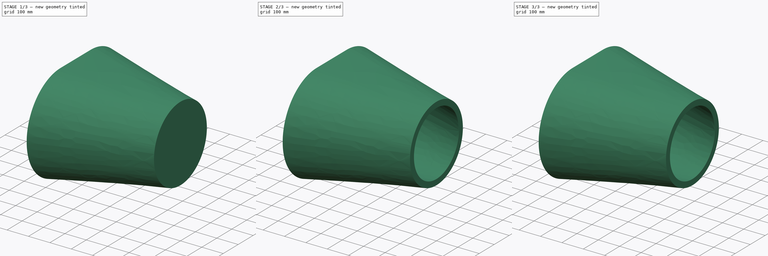
[diagram: build sequence overview — one tinted view per stage of 3, left to right]
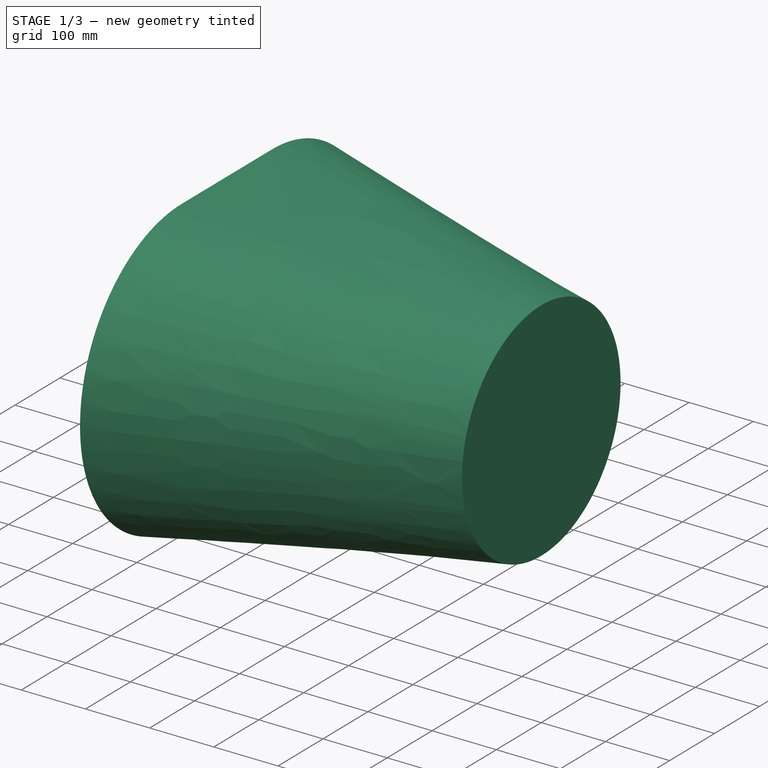
[diagram: stage 1 of 3 — iso view after this stage's code; geometry added in this stage tinted green]
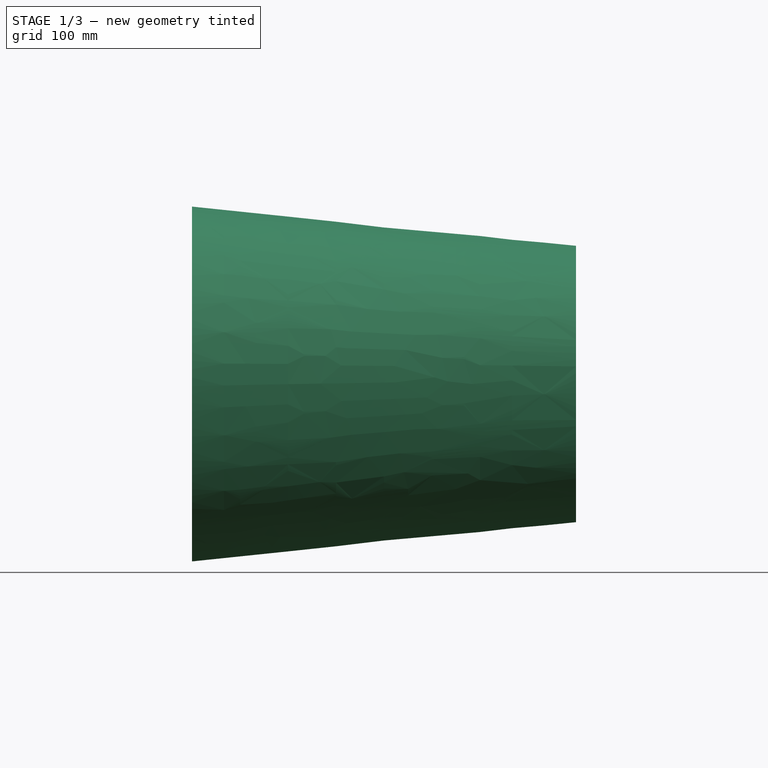
[diagram: stage 1 of 3 — front view after this stage's code; geometry added in this stage tinted green]
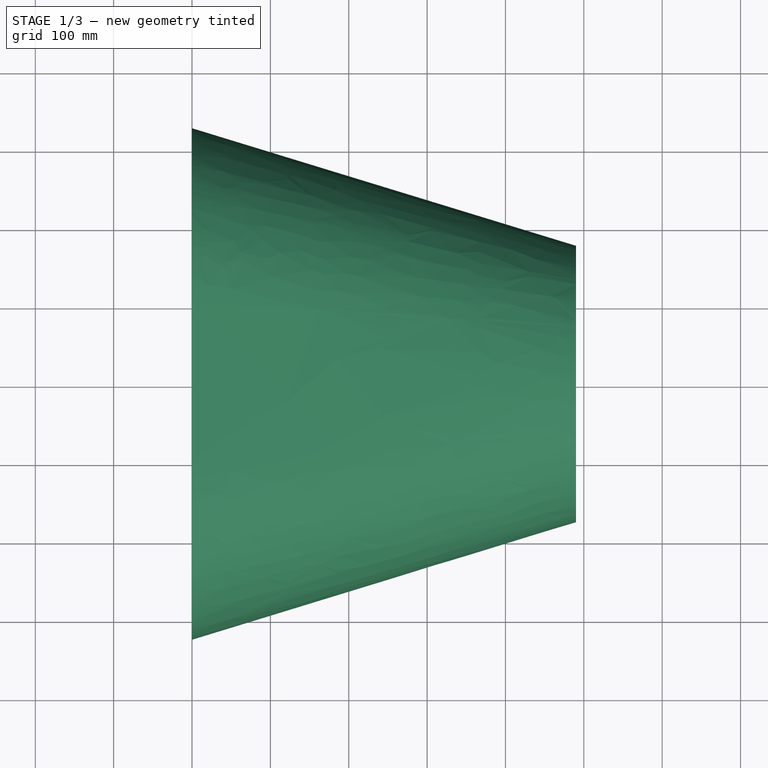
[diagram: stage 1 of 3 — top view after this stage's code; geometry added in this stage tinted green]
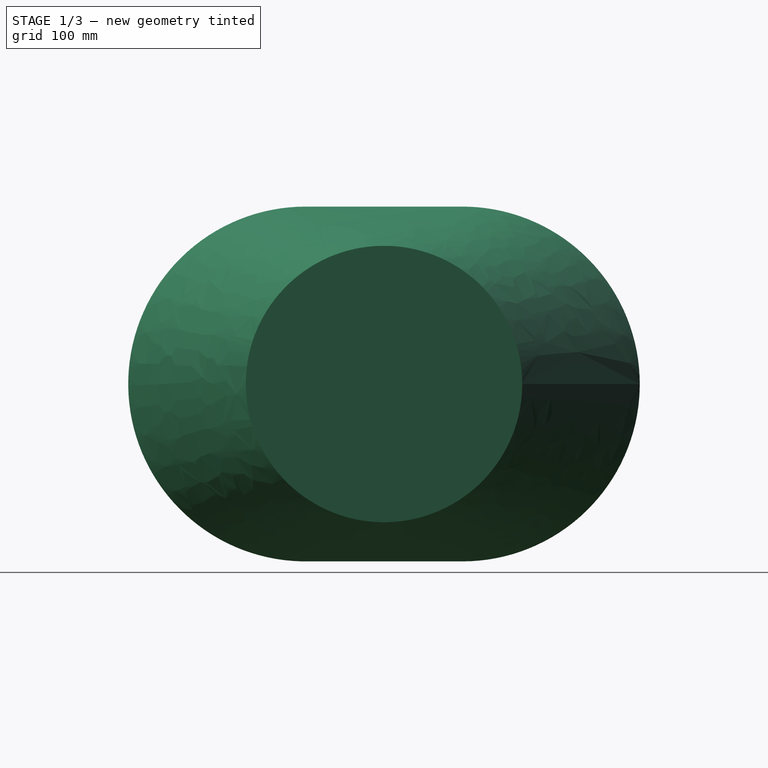
[diagram: stage 1 of 3 — right view after this stage's code; geometry added in this stage tinted green]
FCSTD DOCUMENT  (FreeCAD 1.0R38641 +468 (Git))
Label: Duct_linear_circular_oval_complete_R05
License: All rights reserved
LicenseURL: https://en.wikipedia.org/wiki/All_rights_reserved
objects: Sketcher::SketchObject×8, App::DocumentObjectGroup×5, TechDraw::DrawViewPart×4, Part::Sweep×3, App::MaterialObjectPython×2, Part::Cut×2, Part::Extrusion×2, Part::Part2DObjectPython×1, Spreadsheet::Sheet×1, TechDraw::DrawViewSpreadsheet×1, TechDraw::DrawSVGTemplate×1, App::TextDocument×1, TechDraw::DrawViewSection×1, TechDraw::DrawPage×1, App::VarSet×1, App::DocumentObjectGroupPython×1
note: 24 computed .brp shape members not serialized (recipe doc carries the construction recipe); baked Part::Feature solids carry a one-line shape summary decoded from their .brp

FEATURE [Sketcher::SketchObject] Sketch034  label="Opening_01_external_oval_"
  ArcFitTolerance = 0
  AttachmentOffset = pos=(0,0,-245) rot=(0,0,1;0rad)
  AttachmentSupport = -> [Line]
  FullyConstrained = true
  MakeInternals = false
  MapMode = 45
  Placement = pos=(0,0,0) rot=(0.57735,0.57735,0.57735;2.0944rad)
  expr: .AttachmentOffset.Base.z = -VarSet.Duct_Axis.Length / 2
  expr: .Constraints.Diameter = VarSet.Duct_Opening1_diameter + 2 * VarSet.Duct_Sheet_thickness
  expr: .Constraints.Distance_betweens_arcs = VarSet.Duct_Opening1_distance_between_arcs
  expr: .Constraints.Horizontal_position = VarSet.Duct_Opening1_distance_between_arcs / 2 + VarSet.Duct_Opening1_horizontal_position
  expr: .Constraints.Vertical_position = VarSet.Duct_Opening1_vertical_position
  expr: AttachmentSupport = VarSet.Duct_Axis
  expr: MapReversed = VarSet.Duct_Flip_axis
  sketch-geometry (4):
    g0: ArcOfCircle CenterX=-100 CenterY=-1.18e-14 CenterZ=0 NormalX=0 NormalY=0 NormalZ=1 AngleXU=0 Radius=201 StartAngle=1.5708 EndAngle=4.71239
    g1: ArcOfCircle CenterX=100 CenterY=0 CenterZ=0 NormalX=0 NormalY=0 NormalZ=1 AngleXU=0 Radius=201 StartAngle=4.71239 EndAngle=7.85398
    g2: LineSegment StartX=-100 StartY=-201 StartZ=0 EndX=100 EndY=-201 EndZ=0
    g3: LineSegment StartX=100 StartY=201 StartZ=0 EndX=-100 EndY=201 EndZ=0
  constraints (10):
    c: Tangent(g0,g2) = -1.5708
    c: Tangent(g2,g1) = -1.5708
    c: Tangent(g1,g3) = -1.5708
    c: Tangent(g3,g0) = -1.5708
    c: Equal(g0,g1)
    c: DistanceX(g0,g1) = 200  'Distance_betweens_arcs'
    c: Diameter(g1) = 402  'Diameter'
    c: Horizontal(g2)
    c: DistanceX(g-1,g1) = 100  'Horizontal_position'
    c: DistanceY(g-1,g1) = 0  'Vertical_position'
FEATURE [Sketcher::SketchObject] Sketch035  label="Opening_02_external_circular_"
  ArcFitTolerance = 0
  AttachmentOffset = pos=(0,0,245) rot=(0,0,1;0rad)
  AttachmentSupport = -> [Line]
  FullyConstrained = true
  MakeInternals = false
  MapMode = 45
  Placement = pos=(490,0,0) rot=(0.57735,0.57735,0.57735;2.0944rad)
  expr: .AttachmentOffset.Base.z = VarSet.Duct_Axis.Length / 2
  expr: .Constraints.Diameter = VarSet.Duct_Opening2_diameter + 2 * VarSet.Duct_Sheet_thickness
  expr: .Constraints.Horizontal_position = VarSet.Duct_Opening2_horizontal_position
  expr: .Constraints.Vertical_position = VarSet.Duct_Opening2_vertical_position
  expr: AttachmentSupport = VarSet.Duct_Axis
  expr: MapReversed = VarSet.Duct_Flip_axis
  sketch-geometry (1):
    g0: Circle CenterX=0 CenterY=0 CenterZ=0 NormalX=0 NormalY=0 NormalZ=1 AngleXU=0 Radius=151
  constraints (3):
    c: Diameter(g0) = 302  'Diameter'
    c: DistanceX(g-1,g0) = 0  'Horizontal_position'
    c: DistanceY(g-1,g0) = 0  'Vertical_position'
FEATURE [Part::Sweep] Sweep002  label="Sweep001_external_volume"
  Frenet = true
  Sections = -> [Sketch034,Sketch035]
  Solid = true
  Spine = -> Line
  Transition = 1
  expr: Spine = VarSet.Duct_Axis
FEATURE [Sketcher::SketchObject] Sketch036  label="Opening_01_flange_oval_"
  ArcFitTolerance = 0
  AttachmentOffset = pos=(0,0,-245) rot=(0,0,1;0rad)
  AttachmentSupport = -> [Line]
  FullyConstrained = true
  MakeInternals = false
  MapMode = 45
  Placement = pos=(0,0,0) rot=(0.57735,0.57735,0.57735;2.0944rad)
  expr: .AttachmentOffset.Base.z = -VarSet.Duct_Axis.Length / 2
  expr: .Constraints.Diameter_external = VarSet.Duct_Opening1_diameter + 2 * VarSet.Flange_Height
  expr: .Constraints.Diameter_internal = VarSet.Duct_Opening1_diameter
  expr: .Constraints.Distance_betweens_arcs = VarSet.Duct_Opening1_distance_between_arcs
  expr: .Constraints.Horizontal_position = VarSet.Duct_Opening1_distance_between_arcs / 2 + VarSet.Duct_Opening1_horizontal_position
  expr: .Constraints.Vertical_position = VarSet.Duct_Opening1_vertical_position
  expr: AttachmentSupport = VarSet.Duct_Axis
  expr: MapReversed = VarSet.Duct_Flip_axis
  sketch-geometry (8):
    g0: ArcOfCircle CenterX=-100 CenterY=-1.37e-14 CenterZ=0 NormalX=0 NormalY=0 NormalZ=1 AngleXU=0 Radius=220 StartAngle=1.5708 EndAngle=4.71239
    g1: ArcOfCircle CenterX=100 CenterY=0 CenterZ=0 NormalX=0 NormalY=0 NormalZ=1 AngleXU=0 Radius=220 StartAngle=4.71239 EndAngle=7.85398
    g2: LineSegment StartX=-100 StartY=-220 StartZ=0 EndX=100 EndY=-220 EndZ=0
    g3: LineSegment StartX=100 StartY=220 StartZ=0 EndX=-100 EndY=220 EndZ=0
    g4: ArcOfCircle CenterX=-100 CenterY=-1.37e-14 CenterZ=0 NormalX=0 NormalY=0 NormalZ=1 AngleXU=0 Radius=200 StartAngle=1.5708 EndAngle=4.71239
    g5: ArcOfCircle CenterX=100 CenterY=0 CenterZ=0 NormalX=0 NormalY=0 NormalZ=1 AngleXU=0 Radius=200 StartAngle=4.71239 EndAngle=7.85398
    g6: LineSegment StartX=-100 StartY=-200 StartZ=0 EndX=100 EndY=-200 EndZ=0
    g7: LineSegment StartX=100 StartY=200 StartZ=0 EndX=-100 EndY=200 EndZ=0
  constraints (18):
    c: Tangent(g0,g2) = -1.5708
    c: Tangent(g2,g1) = -1.5708
    c: Tangent(g1,g3) = -1.5708
    c: Tangent(g3,g0) = -1.5708
    c: Equal(g0,g1)
    c: DistanceX(g0,g1) = 200  'Distance_betweens_arcs'
    c: Diameter(g1) = 440  'Diameter_external'
    c: Tangent(g4,g6) = -1.5708
    c: Tangent(g6,g5) = -1.5708
    c: Tangent(g5,g7) = -1.5708
    c: Tangent(g7,g4) = -1.5708
    c: Equal(g4,g5)
    c: Coincident(g4,g0)
    c: Coincident(g5,g1)
    c: Diameter(g5) = 400  'Diameter_internal'
    c: Horizontal(g6)
    c: DistanceX(g-1,g1) = 100  'Horizontal_position'
    c: DistanceY(g-1,g1) = 0  'Vertical_position'
FEATURE [Sketcher::SketchObject] Sketch037  label="Opening_02_flane_circular_"
  ArcFitTolerance = 0
  AttachmentOffset = pos=(0,0,245) rot=(0,0,1;0rad)
  AttachmentSupport = -> [Line]
  FullyConstrained = true
  MakeInternals = false
  MapMode = 45
  Placement = pos=(490,0,0) rot=(0.57735,0.57735,0.57735;2.0944rad)
  expr: .AttachmentOffset.Base.z = VarSet.Duct_Axis.Length / 2
  expr: .Constraints.Diameter_external = VarSet.Duct_Opening2_diameter + 2 * VarSet.Flange_Height
  expr: .Constraints.Diameter_internal = VarSet.Duct_Opening2_diameter
  expr: .Constraints.Horizontal_position = VarSet.Duct_Opening2_horizontal_position
  expr: .Constraints.Vertical_position = VarSet.Duct_Opening2_vertical_position
  expr: AttachmentSupport = VarSet.Duct_Axis
  expr: MapReversed = VarSet.Duct_Flip_axis
  sketch-geometry (2):
    g0: Circle CenterX=0 CenterY=0 CenterZ=0 NormalX=0 NormalY=0 NormalZ=1 AngleXU=0 Radius=170
    g1: Circle CenterX=0 CenterY=0 CenterZ=0 NormalX=0 NormalY=0 NormalZ=1 AngleXU=0 Radius=150
  constraints (5):
    c: Diameter(g0) = 340  'Diameter_external'
    c: DistanceX(g-1,g0) = 0  'Horizontal_position'
    c: DistanceY(g-1,g0) = 0  'Vertical_position'
    c: Coincident(g1,g0)
    c: Diameter(g1) = 300  'Diameter_internal'
FEATURE [Spreadsheet::Sheet] Spreadsheet003  label="Output_linear_circular_oval_duct"
  cells = A1='Description:; A2==<<Oval circular duct for air conditioning with %s>> % VarSet.Duct_Axis.Length + << of lenght>> + <<, composed of %s>> % VarSet.Duct_Sheet_thickness + << thick of %s>> % VarSet.Materials_Sheet_metal.Label + << sheets (opening 1 of %s>> % (VarSet.Duct_Opening1_diameter + VarSet.Duct_Opening1_distance_between_arcs) + << x %s>> % VarSet.Duct_Opening1_diameter + << in width and height, and opening 2 of %s>> % VarSet.Duct_Opening2_diameter + << in diameter)>> + VarSet.Insulation_Insulation * (<< with an external insulation layer of %s>> % VarSet.Insulation_Thickness + << thick %s>> % VarSet.Materials_Insulation.Label + << blanket>>) + <<.>>; A5='Components; B5='Dimensions; C5='Area; D5='Material; A6='1. Duct oval circular; C6==Cut.Base_Area; D6==VarSet.Materials_Sheet_metal.Label; A7='1.1. Duct length:; B7==VarSet.Duct_Axis.Length; A8='1.2. Height 1:; B8==VarSet.Duct_Opening1_diameter; A9='1.3. Width 1; B9==VarSet.Duct_Opening1_diameter + VarSet.Duct_Opening1_distance_between_arcs; A10='1.3. Diameter 2:; B10==VarSet.Duct_Opening2_diameter; A11='1.4. Sheet thickness:; B11==VarSet.Duct_Sheet_thickness; A12='2. Flanges; C12==(VarSet.Flange_Flange1 + VarSet.Flange_Flange2 - VarSet.Flange_Flange1 * VarSet.Flange_Flange2) * str(round(Extrude.Base_Area * VarSet.Flange_Flange1 + Extrude001.Base_Area * VarSet.Flange_Flange2)); D12==(VarSet.Flange_Flange1 + VarSet.Flange_Flange2 - VarSet.Flange_Flange1 * VarSet.Flange_Flange2) * VarSet.Materials_Sheet_metal.Label; A13='2.1. Flanges height:; B13==(VarSet.Flange_Flange1 + VarSet.Flange_Flange2 - VarSet.Flange_Flange1 * VarSet.Flange_Flange2) * str(VarSet.Flange_Height); A14='2.2. Flanges thickness:; B14==(VarSet.Flange_Flange1 + VarSet.Flange_Flange2 - VarSet.Flange_Flange1 * VarSet.Flange_Flange2) * str(VarSet.Flange_Thickness); A15='3. Insulation; C15==VarSet.Insulation_Insulation * str(round(Cut001.Base_Area)) + <<--->> * (1 - VarSet.Insulation_Insulation); D15==VarSet.Materials_Insulation.Label * VarSet.Insulation_Insulation + <<--->> * (1 - VarSet.Insulation_Insulation); A16='3.1. Insulation thickness:; B16==str(VarSet.Insulation_Thickness) * VarSet.Insulation_Insulation + <<--->> * (1 - VarSet.Insulation_Insulation)
FEATURE [App::DocumentObjectGroup] Group001  label="Spreadsheet_output_"
  Group = -> [Spreadsheet003]
FEATURE [TechDraw::DrawViewSpreadsheet] Sheet  label="Spreadsheet"
  CellEnd = D16
  CellStart = A5
  Font = Arial
  LineWidth = 0.35
  LockPosition = false
  Rotation = 0
  ScaleType = 2
  Source = -> Spreadsheet003
  Symbol = <blob: 11197 chars omitted>
  TextSize = 14
  X = 319.693
  Y = 120.956
  expr: Scale = 1
FEATURE [TechDraw::DrawSVGTemplate] Template
  EditableTexts = AUTHOR_NAME=AUTHOR NAME; DN=DN; DRAWING_TITLE=DRAWING TITLE; FC-DATE=DD/MM/YYYY; FC-REV=REV A; FC-SC=1/20; FC-SH=X / Y; FC-SI=A3; FreeCAD_DRAWING=Circular oval duct; PN=PN
  Height = 297
  Orientation = 1
  Template = <userpath>/.cache/FreeCAD/Cache/FreeCAD_Doc_3643bbbe-9e9e-4a03-a47e-29c3828a9b33_5532ac_6794/A3_Landscape_ISO7200TD.svg
  Width = 420
FEATURE [Sketcher::SketchObject] Sketch038  label="Opening_01_external_oval_insulation"
  ArcFitTolerance = 0
  AttachmentOffset = pos=(0,0,-245) rot=(0,0,1;0rad)
  AttachmentSupport = -> [Line]
  FullyConstrained = true
  MakeInternals = false
  MapMode = 45
  Placement = pos=(0,0,0) rot=(0.57735,0.57735,0.57735;2.0944rad)
  expr: .AttachmentOffset.Base.z = -VarSet.Duct_Axis.Length / 2
  expr: .Constraints.Diameter = VarSet.Duct_Opening1_diameter + 2 * VarSet.Duct_Sheet_thickness + 2 * VarSet.Insulation_Thickness
  expr: .Constraints.Distance_betweens_arcs = VarSet.Duct_Opening1_distance_between_arcs
  expr: .Constraints.Horizontal_position = VarSet.Duct_Opening1_distance_between_arcs / 2 + VarSet.Duct_Opening1_horizontal_position
  expr: .Constraints.Vertical_position = VarSet.Duct_Opening1_vertical_position
  expr: AttachmentSupport = VarSet.Duct_Axis
  expr: MapReversed = VarSet.Duct_Flip_axis
  sketch-geometry (4):
    g0: ArcOfCircle CenterX=-100 CenterY=6.5e-15 CenterZ=0 NormalX=0 NormalY=0 NormalZ=1 AngleXU=0 Radius=226.4 StartAngle=1.5708 EndAngle=4.71239
    g1: ArcOfCircle CenterX=100 CenterY=0 CenterZ=0 NormalX=0 NormalY=0 NormalZ=1 AngleXU=0 Radius=226.4 StartAngle=4.71239 EndAngle=7.85398
    g2: LineSegment StartX=-100 StartY=-226.4 StartZ=0 EndX=100 EndY=-226.4 EndZ=0
    g3: LineSegment StartX=100 StartY=226.4 StartZ=0 EndX=-100 EndY=226.4 EndZ=0
  constraints (10):
    c: Tangent(g0,g2) = -1.5708
    c: Tangent(g2,g1) = -1.5708
    c: Tangent(g1,g3) = -1.5708
    c: Tangent(g3,g0) = -1.5708
    c: Equal(g0,g1)
    c: DistanceX(g0,g1) = 200  'Distance_betweens_arcs'
    c: Diameter(g1) = 452.8  'Diameter'
    c: Horizontal(g2)
    c: DistanceX(g-1,g1) = 100  'Horizontal_position'
    c: DistanceY(g-1,g1) = 0  'Vertical_position'
FEATURE [Sketcher::SketchObject] Sketch039  label="Opening_02_external_circular_insulation"
  ArcFitTolerance = 0
  AttachmentOffset = pos=(0,0,245) rot=(0,0,1;0rad)
  AttachmentSupport = -> [Line]
  FullyConstrained = true
  MakeInternals = false
  MapMode = 45
  Placement = pos=(490,0,0) rot=(0.57735,0.57735,0.57735;2.0944rad)
  expr: .AttachmentOffset.Base.z = VarSet.Duct_Axis.Length / 2
  expr: .Constraints.Diameter = VarSet.Duct_Opening2_diameter + 2 * VarSet.Duct_Sheet_thickness + 2 * VarSet.Insulation_Thickness
  expr: .Constraints.Horizontal_position = VarSet.Duct_Opening2_horizontal_position
  expr: .Constraints.Vertical_position = VarSet.Duct_Opening2_vertical_position
  expr: AttachmentSupport = VarSet.Duct_Axis
  expr: MapReversed = VarSet.Duct_Flip_axis
  sketch-geometry (1):
    g0: Circle CenterX=0 CenterY=0 CenterZ=0 NormalX=0 NormalY=0 NormalZ=1 AngleXU=0 Radius=176.4
  constraints (3):
    c: Diameter(g0) = 352.8  'Diameter'
    c: DistanceX(g-1,g0) = 0  'Horizontal_position'
    c: DistanceY(g-1,g0) = 0  'Vertical_position'
FEATURE [Part::Sweep] Sweep003  label="Sweep001_external_insulation"
  Frenet = true
  Sections = -> [Sketch038,Sketch039]
  Solid = true
  Spine = -> Line
  Transition = 1
  expr: Spine = VarSet.Duct_Axis
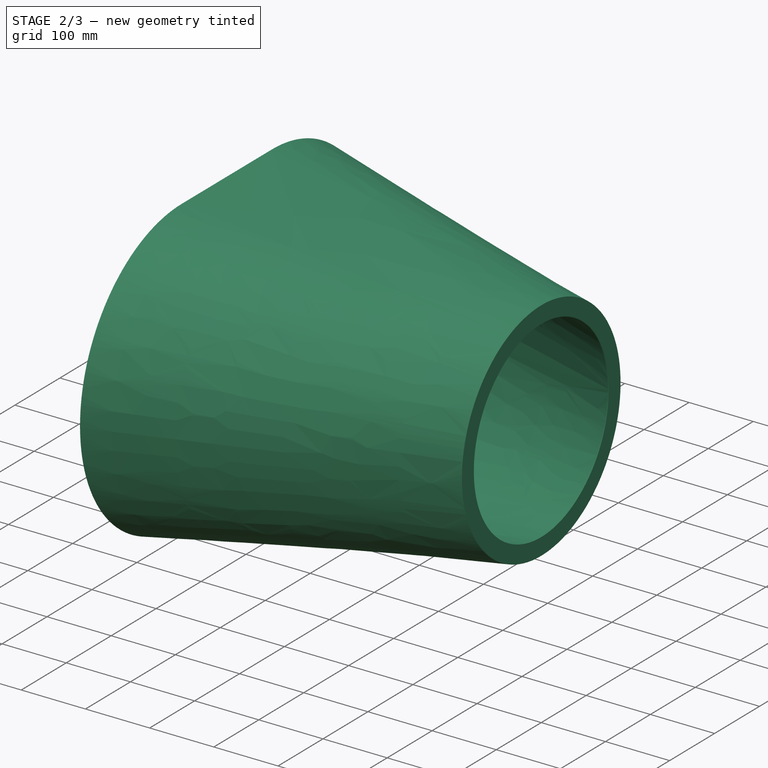
[diagram: stage 2 of 3 — iso view after this stage's code; geometry added in this stage tinted green]
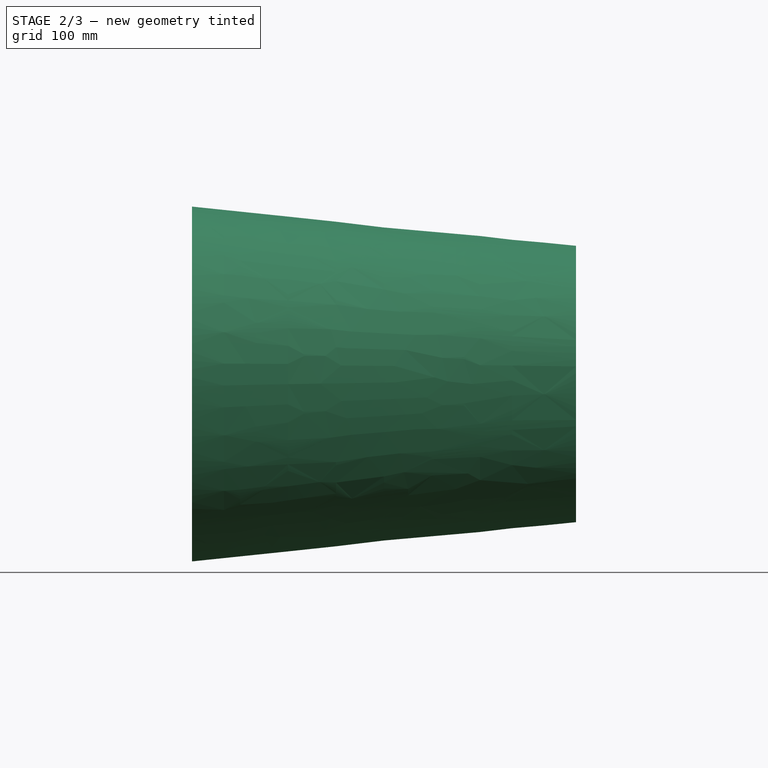
[diagram: stage 2 of 3 — front view after this stage's code; geometry added in this stage tinted green]
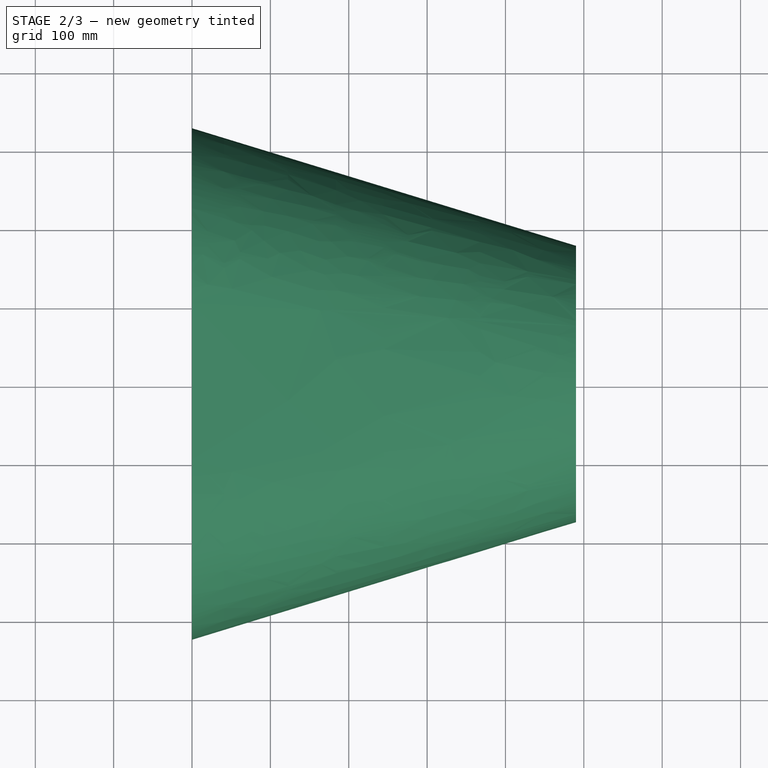
[diagram: stage 2 of 3 — top view after this stage's code; geometry added in this stage tinted green]
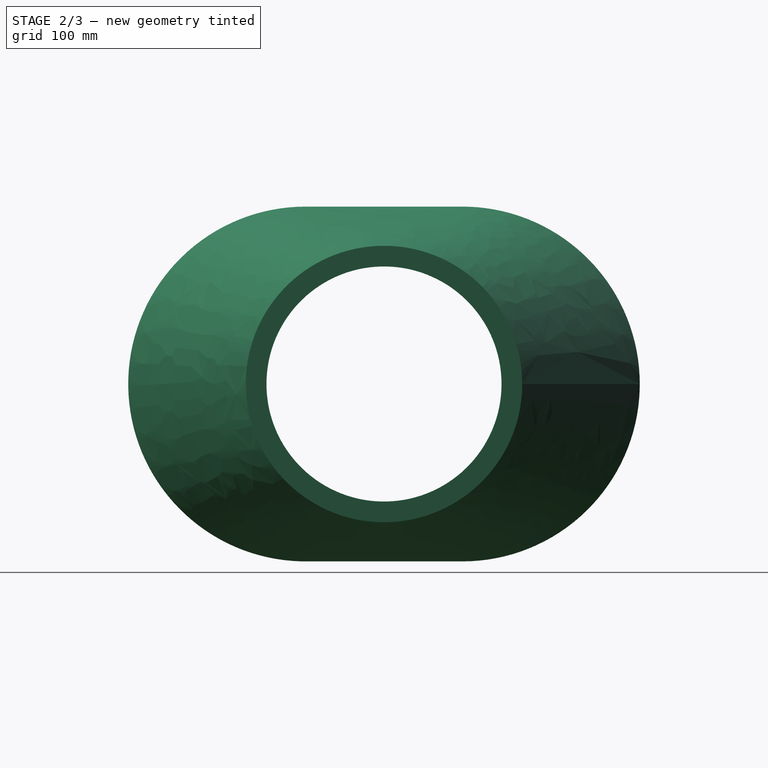
[diagram: stage 2 of 3 — right view after this stage's code; geometry added in this stage tinted green]
FEATURE [Part::Extrusion] Extrude  label="Flange_01"
  Base = -> Sketch036
  Base_Area = 34389.4
  Dir = (1,0,0)
  DirMode = 2
  FaceMakerClass = Part::FaceMakerBullseye
  FaceMakerMode = 3
  LengthFwd = 1
  LengthRev = 0
  Material = -> Material049
  Solid = true
  Symmetric = false
  expr: Base_Area = .Shape.Face9.Area
  expr: LengthFwd = VarSet.Flange_Thickness
  expr: Material = VarSet.Materials_Sheet_metal
  expr: Visibility = VarSet.Flange_Flange1 * (1 - VarSet.Duct_Show_volume_only)
FEATURE [Part::Extrusion] Extrude001  label="Flange_02"
  Base = -> Sketch037
  Base_Area = 20106.2
  Dir = (1,0,0)
  DirMode = 2
  FaceMakerClass = Part::FaceMakerBullseye
  FaceMakerMode = 3
  LengthFwd = 1
  LengthRev = 0
  Material = -> Material049
  Reversed = true
  Solid = true
  Symmetric = false
  expr: Base_Area = .Shape.Face3.Area
  expr: LengthFwd = VarSet.Flange_Thickness
  expr: Material = VarSet.Materials_Sheet_metal
  expr: Visibility = VarSet.Flange_Flange2 * (1 - VarSet.Duct_Show_volume_only)
FEATURE [TechDraw::DrawViewPart] View  label="Isometric"
  CoarseView = false
  Direction = (0.57735,-0.57735,0.57735)
  Focus = 100
  HardHidden = false
  IsoCount = 0
  IsoHidden = false
  IsoVisible = false
  LockPosition = false
  Perspective = false
  Rotation = 0
  Scale = 0.05
  ScaleType = 2
  ScrubCount = 0
  SeamHidden = false
  SeamVisible = true
  SmoothHidden = false
  SmoothVisible = true
  Source = -> [Cut,Extrude,Extrude001]
  X = 330.052
  XDirection = (0.707107,0.707107,0)
  Y = 235.47
FEATURE [TechDraw::DrawViewPart] View001  label="View 01"
  CoarseView = false
  Direction = (1,0,0)
  Focus = 100
  HardHidden = false
  IsoCount = 0
  IsoHidden = false
  IsoVisible = false
  LockPosition = false
  Perspective = false
  Rotation = 0
  Scale = 0.05
  ScaleType = 2
  ScrubCount = 0
  SeamHidden = false
  SeamVisible = true
  SmoothHidden = false
  SmoothVisible = true
  Source = -> [Cut,Extrude,Extrude001]
  X = 75.3951
  XDirection = (0,1,0)
  Y = 232.93
FEATURE [TechDraw::DrawViewPart] View002  label="View 02"
  CoarseView = false
  Direction = (-1,0,0)
  Focus = 100
  HardHidden = false
  IsoCount = 0
  IsoHidden = false
  IsoVisible = false
  LockPosition = false
  Perspective = false
  Rotation = 0
  Scale = 0.05
  ScaleType = 2
  ScrubCount = 0
  SeamHidden = false
  SeamVisible = true
  SmoothHidden = false
  SmoothVisible = true
  Source = -> [Cut,Extrude,Extrude001]
  X = 68.1134
  XDirection = (0,-1,0)
  Y = 106.869
FEATURE [TechDraw::DrawViewPart] View003  label="View 03"
  CoarseView = false
  Direction = (0,-1,0)
  Focus = 100
  HardHidden = false
  IsoCount = 0
  IsoHidden = false
  IsoVisible = false
  LockPosition = false
  Perspective = false
  Rotation = 0
  Scale = 0.05
  ScaleType = 2
  ScrubCount = 0
  SeamHidden = false
  SeamVisible = true
  SmoothHidden = false
  SmoothVisible = true
  Source = -> [Cut,Extrude,Extrude001]
  X = 168.339
  XDirection = (1,0,0)
  Y = 103.619
FEATURE [TechDraw::DrawViewSection] SectionView  label="Section 01"
  BaseView = -> View003
  CoarseView = false
  CutSurfaceDisplay = 2
  Direction = (1e-16,0,1)
  FileGeomPattern = <path>
  FileHatchPattern = <path>
  Focus = 100
  FuseBeforeCut = false
  HardHidden = false
  HatchOffset = (0,0,0)
  HatchRotation = 0
  HatchScale = 1
  IsoCount = 0
  IsoHidden = false
  IsoVisible = false
  LockPosition = false
  NameGeomPattern = Diamante
  Perspective = false
  Rotation = 0
  Scale = 0.05
  ScaleType = 2
  ScrubCount = 0
  SeamHidden = false
  SeamVisible = true
  SectionDirection = 4
  SectionLineStretch = 1
  SectionNormal = (1e-16,0,1)
  SectionOrigin = (245,0,0)
  SmoothHidden = false
  SmoothVisible = true
  Source = -> [Cut,Extrude,Extrude001]
  TrimAfterCut = false
  UsePreviousCut = false
  X = 168.727
  XDirection = (1,0,-1e-16)
  Y = 232.767
FEATURE [TechDraw::DrawPage] Page  label="Sheet_01"
  KeepUpdated = true
  NextBalloonIndex = 1
  ProjectionType = 0
  Template = -> Template
  Views = -> [Sheet,View,View001,View002,View003,SectionView]
FEATURE [App::DocumentObjectGroup] Group002  label="Drawings_"
  Group = -> [Page]
FEATURE [App::MaterialObjectPython] Material050  label="glass wool with aluminium foill generic"  # material (typed FeaturePython)
  Material = AuthorAndLicense=Uwe Stöhr; CardName=Iron-Generic; Color=(0.8, 0.8, 0.8, 1.0); Density=7874 kg/m^3; DiffuseColor=(0.7372549176216125, 0.7372549176216125, 0.7372549176216125); ElectricalConductivity=10.3 MS/m; Father=Metal; KindOfMaterial=Iron; Name=glass wool with aluminium foill generic; PoissonRatio=0.29; RelativePermeability=5000.0; SectionColor=(0.8, 0.8, 0.8, 1.0); ShearModulus=82.0 GPa; SpecificHeat=460.5 J/kg/K; ThermalConductivity=80.4 W/m/K; ThermalExpansionCoefficient=11.8 µm/m/K; Transparency=0; UltimateTensileStrength=497 MPa; ViewColor=(0.8, 0.8, 0.8, 1.0); YieldStrength=428 MPa; YoungsModulus=211 GPa
  Transparency = 0
FEATURE [App::VarSet] VarSet  label="Duct_linear_circular_oval_properties"
  Duct_Axis = -> Line
  Duct_Duct = true
  Duct_Flip_axis = false
  Duct_Opening1_diameter = 400
  Duct_Opening1_distance_between_arcs = 200
  Duct_Opening1_horizontal_position = 0
  Duct_Opening1_vertical_position = 0
  Duct_Opening2_diameter = 300
  Duct_Opening2_horizontal_position = 0
  Duct_Opening2_vertical_position = 0
  Duct_Sheet_thickness = 1
  Duct_Show_volume_only = false
  Flange_Flange1 = true
  Flange_Flange2 = true
  Flange_Height = 20
  Flange_Thickness = 1
  Insulation_Insulation = true
  Insulation_Thickness = 25.4
  Materials_Insulation = -> Material050
  Materials_Sheet_metal = -> Material049
  expr: Insulation_Thickness = 1 in
FEATURE [Part::Cut] Cut001  label="Insulation"
  Base = -> Sweep003
  Base_Area = 2.76906e+06
  Material = -> Material050
  Tool = -> Sweep002
  expr: Base_Area = .Shape.Face1.Area + .Shape.Face2.Area + .Shape.Face4.Area + .Shape.Face6.Area + .Shape.Face7.Area
  expr: Material = VarSet.Materials_Insulation
  expr: Visibility = VarSet.Insulation_Insulation * (1 - VarSet.Duct_Show_volume_only)
FEATURE [App::DocumentObjectGroup] Group  label="Components"
  Group = -> [Cut,Extrude,Extrude001,Cut001]
FEATURE [App::DocumentObjectGroupPython] MaterialContainer  label="Materials"  # scripted group (container) (typed FeaturePython)
  Group = -> [Material049,Material050]
FEATURE [App::DocumentObjectGroup] Group003  label="Material"
  Group = -> [MaterialContainer]
FEATURE [App::DocumentObjectGroup] Group004  label="Duct_linear_circular_oval_#_"
  Group = -> [VarSet,Group,Group001,Group002,Group003,Text_document]
note: 2 file-system paths scrubbed to <path> (originals preserved in the JSON sidecar)
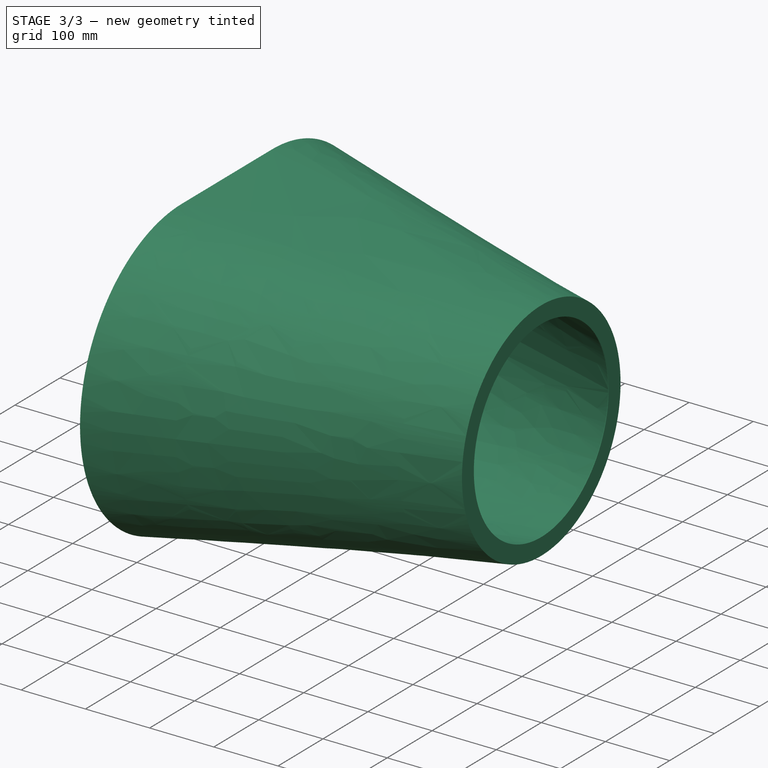
[diagram: stage 3 of 3 — iso view after this stage's code; geometry added in this stage tinted green]
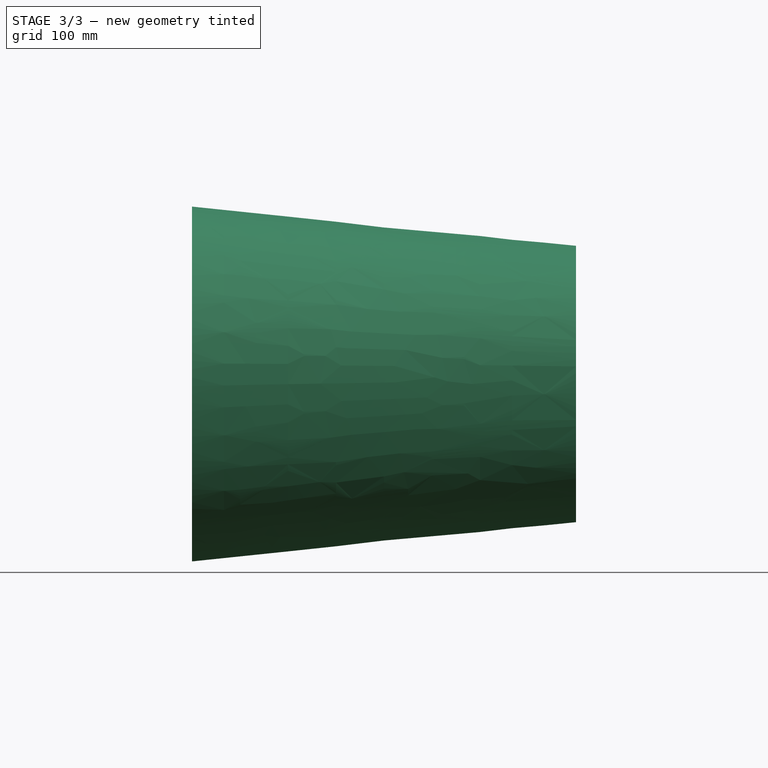
[diagram: stage 3 of 3 — front view after this stage's code; geometry added in this stage tinted green]
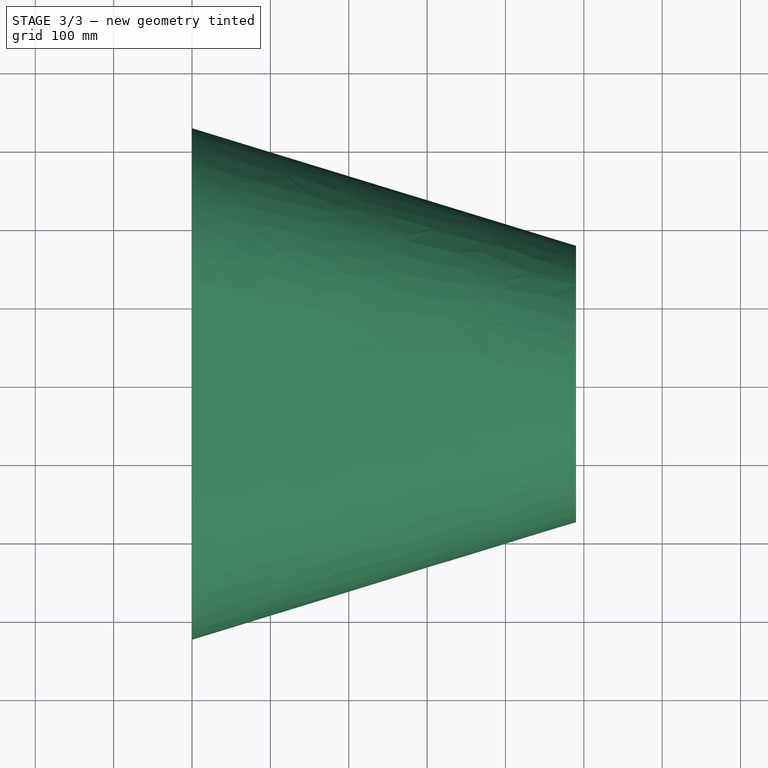
[diagram: stage 3 of 3 — top view after this stage's code; geometry added in this stage tinted green]
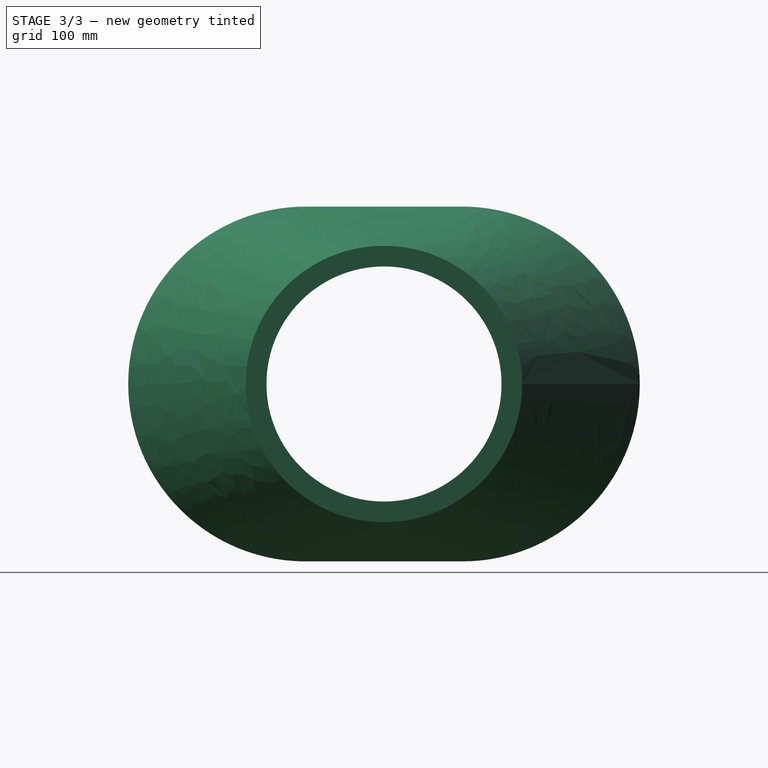
[diagram: stage 3 of 3 — right view after this stage's code; geometry added in this stage tinted green]
FEATURE [Part::Part2DObjectPython] Line  label="Axis"  # Draft 2D object (typed FeaturePython)
  Area = 0
  ChamferSize = 0
  Closed = false
  End = (490,0,0)
  FilletRadius = 0
  Length = 490
  MakeFace = true
  Points = (2) [(0,0,0),(490,0,0)]
  Start = (0,0,0)
  Subdivisions = 0
FEATURE [Sketcher::SketchObject] Sketch032  label="Opening_01_internal_oval_"
  ArcFitTolerance = 0
  AttachmentOffset = pos=(0,0,-245) rot=(0,0,1;0rad)
  AttachmentSupport = -> [Line]
  FullyConstrained = true
  MakeInternals = false
  MapMode = 45
  Placement = pos=(0,0,0) rot=(0.57735,0.57735,0.57735;2.0944rad)
  expr: .AttachmentOffset.Base.z = -VarSet.Duct_Axis.Length / 2
  expr: .Constraints.Diameter = VarSet.Duct_Opening1_diameter
  expr: .Constraints.Distance_betweens_arcs = VarSet.Duct_Opening1_distance_between_arcs
  expr: .Constraints.Horizontal_position = VarSet.Duct_Opening1_distance_between_arcs / 2 + VarSet.Duct_Opening1_horizontal_position
  expr: .Constraints.Vertical_position = VarSet.Duct_Opening1_vertical_position
  expr: AttachmentSupport = VarSet.Duct_Axis
  expr: MapReversed = VarSet.Duct_Flip_axis
  sketch-geometry (4):
    g0: ArcOfCircle CenterX=-100 CenterY=0 CenterZ=0 NormalX=0 NormalY=0 NormalZ=1 AngleXU=0 Radius=200 StartAngle=1.5708 EndAngle=4.71239
    g1: ArcOfCircle CenterX=100 CenterY=-1.7e-14 CenterZ=0 NormalX=0 NormalY=0 NormalZ=1 AngleXU=0 Radius=200 StartAngle=4.71239 EndAngle=7.85398
    g2: LineSegment StartX=-100 StartY=-200 StartZ=0 EndX=100 EndY=-200 EndZ=0
    g3: LineSegment StartX=100 StartY=200 StartZ=0 EndX=-100 EndY=200 EndZ=0
  constraints (10):
    c: Tangent(g0,g2) = -1.5708
    c: Tangent(g2,g1) = -1.5708
    c: Tangent(g1,g3) = -1.5708
    c: Tangent(g3,g0) = -1.5708
    c: Equal(g0,g1)
    c: DistanceX(g0,g1) = 200  'Distance_betweens_arcs'
    c: Diameter(g1) = 400  'Diameter'
    c: Horizontal(g2)
    c: DistanceY(g-1,g0) = 0  'Vertical_position'
    c: DistanceX(g-1,g1) = 100  'Horizontal_position'
FEATURE [Sketcher::SketchObject] Sketch033  label="Opening_02_internal_circular_"
  ArcFitTolerance = 0
  AttachmentOffset = pos=(0,0,245) rot=(0,0,1;0rad)
  AttachmentSupport = -> [Line]
  FullyConstrained = true
  MakeInternals = false
  MapMode = 45
  Placement = pos=(490,0,0) rot=(0.57735,0.57735,0.57735;2.0944rad)
  expr: .AttachmentOffset.Base.z = VarSet.Duct_Axis.Length / 2
  expr: .Constraints.Diameter = VarSet.Duct_Opening2_diameter
  expr: .Constraints.Horizontal_position = VarSet.Duct_Opening2_horizontal_position
  expr: .Constraints.Vertical_position = VarSet.Duct_Opening2_vertical_position
  expr: AttachmentSupport = VarSet.Duct_Axis
  expr: MapReversed = VarSet.Duct_Flip_axis
  sketch-geometry (1):
    g0: Circle CenterX=0 CenterY=0 CenterZ=0 NormalX=0 NormalY=0 NormalZ=1 AngleXU=0 Radius=150
  constraints (3):
    c: Diameter(g0) = 300  'Diameter'
    c: DistanceX(g-1,g0) = 0  'Horizontal_position'
    c: DistanceY(g-1,g0) = 0  'Vertical_position'
FEATURE [Part::Sweep] Sweep001  label="Sweep001_internal_"
  Frenet = true
  Sections = -> [Sketch032,Sketch033]
  Solid = true
  Spine = -> Line
  Transition = 1
  expr: Spine = VarSet.Duct_Axis
  expr: Visibility = VarSet.Duct_Show_volume_only
FEATURE [App::TextDocument] Text_document  label="Instructions"
  Text = 1. Construction of the axes in the final position of the project:\n\n. Use only individual lines and curves to construct the axes in the final position of the duct network project, one for each duct section;\n\n. Do not use polylines or sketches. If there is already a network with these elements, transform them into individual lines and curves;\n\n. Before applying the ducts in the final network, review the spreadsheets and drawings of the duct files according to the project needs. This will reduce the final review work (see item 3). Be careful not to erase the automation (using expressions) contained in the spreadsheet fields.\n\n2. Application of the component in the final project (see the corresponding tutorial videos):\n\n. In the duct properties window, replace the existing axis with the corresponding section of the final project (Axis of Ducts field);\n\n. Adjust the diameters of openings 1 and 2 according to the project;\n\n. If necessary, invert the duct axis so that openings 1 or 2 swap positions (Flip_axis field of Ducts);\n\n3. Review of individual drawings\n\n. After inserting the ducts into the designed network, review the individual drawings contained in the duct files, according to your needs (scale, dimensions, notes, views, etc.).\n\n4. General drawing of the network\n\n. If you prefer, you can create a spreadsheet of the ducts used linked to the individual ones, presenting a summary of the descriptions, areas, materials, dimensions, as well as their sums.\n\n5. Help and comments\n\n. If you encounter any problems and require help or want to make a comment, use the FreeCAD forum for this purpose.
FEATURE [App::MaterialObjectPython] Material049  label="galvanized steel generic"  # material (typed FeaturePython)
  Material = AuthorAndLicense=Uwe Stöhr; CardName=Iron-Generic; Color=(0.8, 0.8, 0.8, 1.0); Density=7874 kg/m^3; DiffuseColor=(0.3607843220233917, 0.3607843220233917, 0.40784314274787903); ElectricalConductivity=10.3 MS/m; Father=Metal; KindOfMaterial=Iron; Name=galvanized steel generic; PoissonRatio=0.29; RelativePermeability=5000.0; SectionColor=(0.8, 0.8, 0.8, 1.0); ShearModulus=82.0 GPa; SpecificHeat=460.5 J/kg/K; ThermalConductivity=80.4 W/m/K; ThermalExpansionCoefficient=11.8 µm/m/K; Transparency=0; UltimateTensileStrength=497 MPa; ViewColor=(0.8, 0.8, 0.8, 1.0); YieldStrength=428 MPa; YoungsModulus=211 GPa
  Transparency = 0
FEATURE [Part::Cut] Cut  label="Duct"
  Base = -> Sweep002
  Base_Area = 2.46502e+06
  Material = -> Material049
  Tool = -> Sweep001
  expr: Base_Area = .Shape.Face1.Area + .Shape.Face2.Area + .Shape.Face4.Area + .Shape.Face6.Area + .Shape.Face7.Area
  expr: Material = VarSet.Materials_Sheet_metal
  expr: Visibility = VarSet.Duct_Duct * (1 - VarSet.Duct_Show_volume_only)
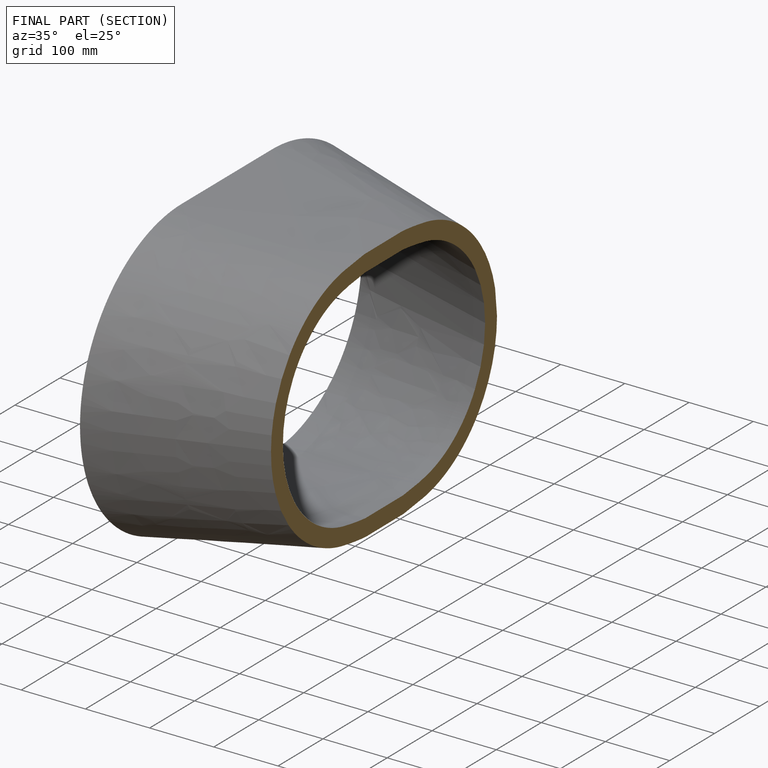
[diagram: finished part — half-section view (interior)]
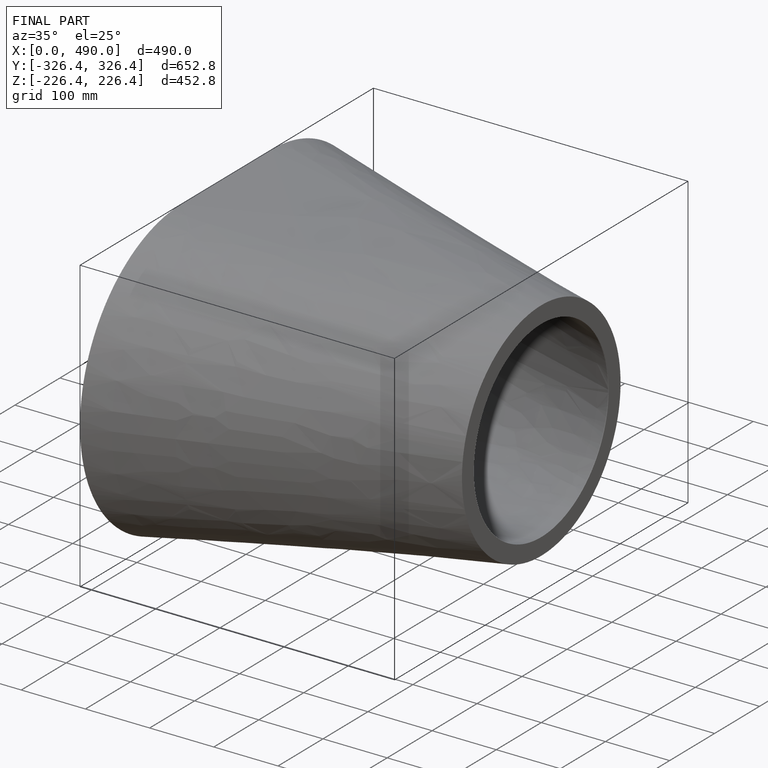
[diagram: finished part — iso view with bounding-box wireframe]
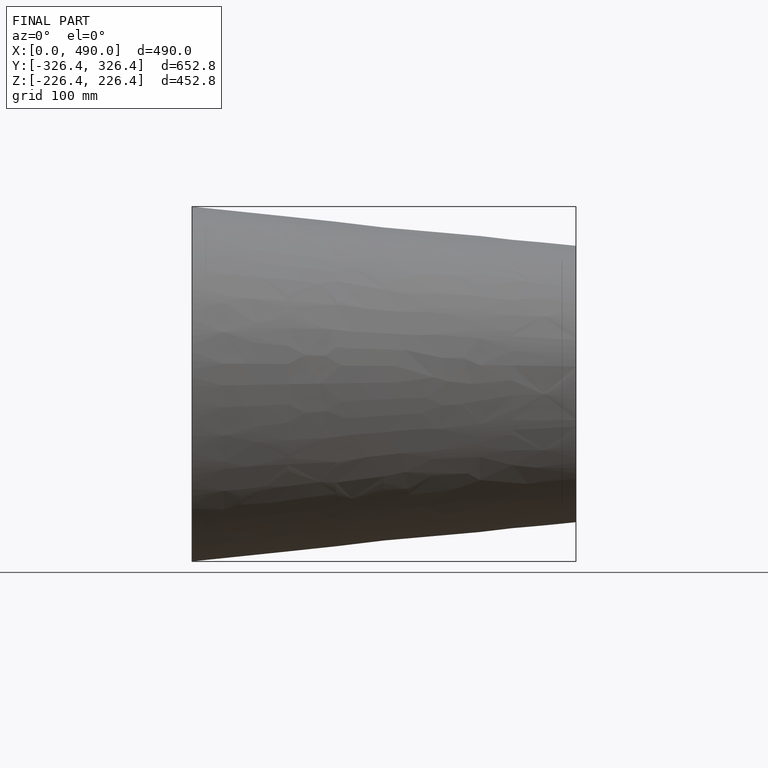
[diagram: finished part — front view with bounding-box wireframe]
